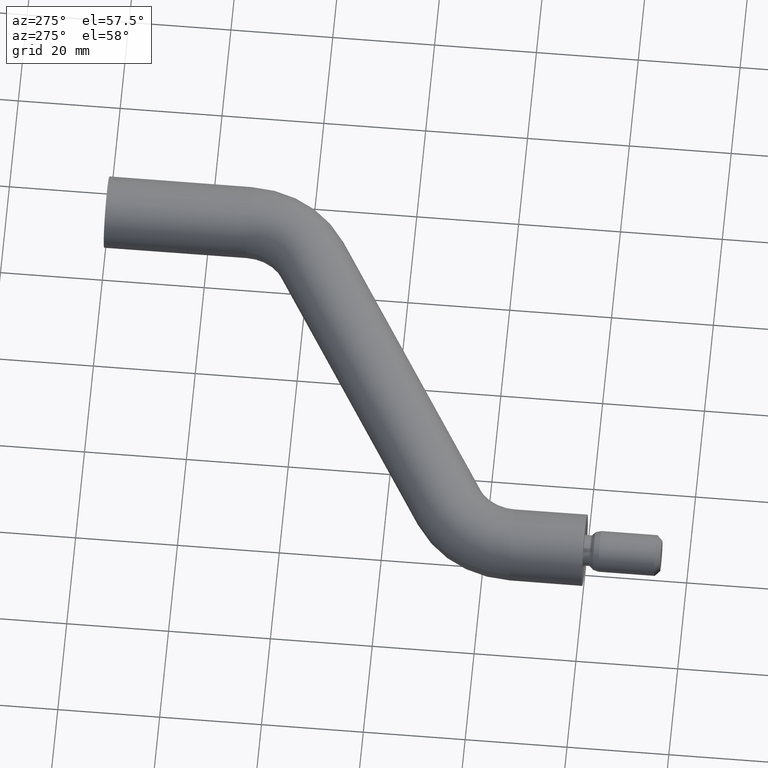
[diagram: clean part render]
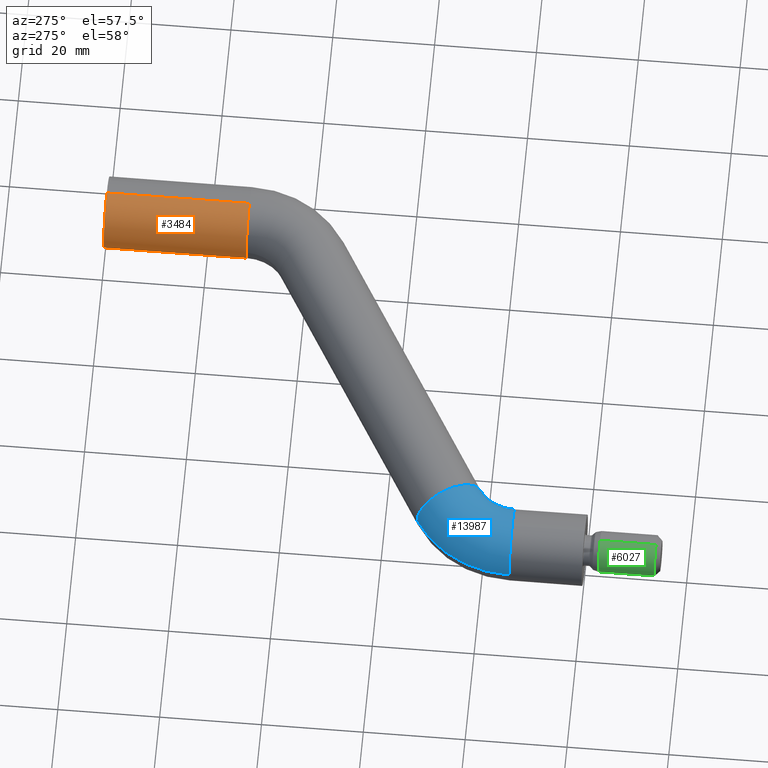
[diagram: same view with three faces highlighted in distinct colors, each labeled with its STEP entity id]
A machine part, auxiliary view with three faces highlighted in distinct colors.
Their STEP definitions:

[orange] entity #3484 — the highlighted cylindrical surface (edge-blend (fillet) strip) has radius 7 mm, axis along (0, 1, 0).
#5 = LINE ( 'NONE', #13776, #2896 ) ;
#145 = AXIS2_PLACEMENT_3D ( 'NONE', #3499, #10958, #8028 ) ;
#302 = DIRECTION ( 'NONE',  ( 0.0000000000000000000, 1.000000000000000000, 0.0000000000000000000 ) ) ;
#484 = DIRECTION ( 'NONE',  ( 0.0000000000000000000, 0.0000000000000000000, 1.000000000000000000 ) ) ;
#662 = CARTESIAN_POINT ( 'NONE',  ( 70.00000000000000000, 72.00000000000001400, 0.0000000000000000000 ) ) ;
#845 = CARTESIAN_POINT ( 'NONE',  ( 70.00000000000000000, 100.0000000000000000, -7.000000000000000000 ) ) ;
#1388 = VERTEX_POINT ( 'NONE', #845 ) ;
#1614 = CYLINDRICAL_SURFACE ( 'NONE', #145, 7.000000000000000000 ) ;
#1654 = ORIENTED_EDGE ( 'NONE', *, *, #5480, .T. ) ;
#1949 = VERTEX_POINT ( 'NONE', #7813 ) ;
#2266 = ORIENTED_EDGE ( 'NONE', *, *, #7674, .F. ) ;
#2325 = CARTESIAN_POINT ( 'NONE',  ( 70.00000000000000000, 72.00000000000001400, 0.0000000000000000000 ) ) ;
#2760 = VERTEX_POINT ( 'NONE', #12949 ) ;
#2896 = VECTOR ( 'NONE', #302, 1000.000000000000000 ) ;
#3065 = DIRECTION ( 'NONE',  ( -7.216449660063517500E-016, 1.000000000000000000, 0.0000000000000000000 ) ) ;
#3157 = ORIENTED_EDGE ( 'NONE', *, *, #14049, .F. ) ;
#3484 = ADVANCED_FACE ( 'NONE', ( #7209 ), #1614, .T. ) ;
#3499 = CARTESIAN_POINT ( 'NONE',  ( 70.00000000000000000, 72.00000000000001400, 0.0000000000000000000 ) ) ;
#3546 = DIRECTION ( 'NONE',  ( 0.0000000000000000000, 0.0000000000000000000, 1.000000000000000000 ) ) ;
#3625 = VERTEX_POINT ( 'NONE', #4930 ) ;
#3854 = ORIENTED_EDGE ( 'NONE', *, *, #14795, .T. ) ;
#4930 = CARTESIAN_POINT ( 'NONE',  ( 70.00000000000000000, 72.00000000000001400, -7.000000000000000000 ) ) ;
#5480 = EDGE_CURVE ( 'NONE', #2760, #1949, #5840, .T. ) ;
#5641 = DIRECTION ( 'NONE',  ( -7.216449660063517500E-016, 1.000000000000000000, 0.0000000000000000000 ) ) ;
#5840 = CIRCLE ( 'NONE', #13898, 7.000000000000000000 ) ;
#7209 = FACE_OUTER_BOUND ( 'NONE', #7919, .T. ) ;
#7512 = LINE ( 'NONE', #14399, #10009 ) ;
#7674 = EDGE_CURVE ( 'NONE', #1388, #11805, #9368, .T. ) ;
#7813 = CARTESIAN_POINT ( 'NONE',  ( 70.00000000000000000, 72.00000000000001400, 7.000000000000000000 ) ) ;
#7919 = EDGE_LOOP ( 'NONE', ( #3157, #12310, #1654, #3854, #2266 ) ) ;
#8028 = DIRECTION ( 'NONE',  ( 0.0000000000000000000, 0.0000000000000000000, 1.000000000000000000 ) ) ;
#8589 = EDGE_CURVE ( 'NONE', #3625, #2760, #9747, .T. ) ;
#9368 = CIRCLE ( 'NONE', #11930, 7.000000000000000000 ) ;
#9747 = CIRCLE ( 'NONE', #11232, 7.000000000000000000 ) ;
#10009 = VECTOR ( 'NONE', #11864, 1000.000000000000000 ) ;
#10187 = CARTESIAN_POINT ( 'NONE',  ( 70.00000000000000000, 100.0000000000000000, 0.0000000000000000000 ) ) ;
#10947 = DIRECTION ( 'NONE',  ( -7.216449660063517500E-016, 1.000000000000000000, 0.0000000000000000000 ) ) ;
#10958 = DIRECTION ( 'NONE',  ( 0.0000000000000000000, 1.000000000000000000, 0.0000000000000000000 ) ) ;
#11232 = AXIS2_PLACEMENT_3D ( 'NONE', #2325, #10947, #3546 ) ;
#11757 = CARTESIAN_POINT ( 'NONE',  ( 70.00000000000000000, 100.0000000000000000, 7.000000000000000000 ) ) ;
#11805 = VERTEX_POINT ( 'NONE', #11757 ) ;
#11864 = DIRECTION ( 'NONE',  ( 0.0000000000000000000, 1.000000000000000000, 0.0000000000000000000 ) ) ;
#11930 = AXIS2_PLACEMENT_3D ( 'NONE', #10187, #3065, #484 ) ;
#12310 = ORIENTED_EDGE ( 'NONE', *, *, #8589, .T. ) ;
#12949 = CARTESIAN_POINT ( 'NONE',  ( 63.00000000000000000, 72.00000000000001400, -8.572527594031465300E-016 ) ) ;
#13776 = CARTESIAN_POINT ( 'NONE',  ( 70.00000000000000000, 72.00000000000001400, -7.000000000000000000 ) ) ;
#13898 = AXIS2_PLACEMENT_3D ( 'NONE', #662, #5641, #14235 ) ;
#14049 = EDGE_CURVE ( 'NONE', #3625, #1388, #5, .T. ) ;
#14235 = DIRECTION ( 'NONE',  ( 0.0000000000000000000, 0.0000000000000000000, 1.000000000000000000 ) ) ;
#14399 = CARTESIAN_POINT ( 'NONE',  ( 70.00000000000000000, 72.00000000000001400, 7.000000000000000000 ) ) ;
#14795 = EDGE_CURVE ( 'NONE', #1949, #11805, #7512, .T. ) ;

[blue] entity #13987 — the highlighted toroidal blend (fillet) surface has major radius 15 mm and minor (blend) radius 7 mm.
#44 = ORIENTED_EDGE ( 'NONE', *, *, #12837, .T. ) ;
#496 = ORIENTED_EDGE ( 'NONE', *, *, #8055, .F. ) ;
#645 = CIRCLE ( 'NONE', #1927, 7.000000000000000000 ) ;
#676 = CARTESIAN_POINT ( 'NONE',  ( 8.572527594031473200E-016, 14.26497308103759900, 7.000000000000000000 ) ) ;
#753 = DIRECTION ( 'NONE',  ( 0.0000000000000000000, 0.0000000000000000000, 1.000000000000000000 ) ) ;
#810 = DIRECTION ( 'NONE',  ( 0.8660254037844398200, 0.4999999999999980000, 0.0000000000000000000 ) ) ;
#842 = DIRECTION ( 'NONE',  ( 0.0000000000000000000, 1.000000000000000000, 0.0000000000000000000 ) ) ;
#1441 = DIRECTION ( 'NONE',  ( -0.0000000000000000000, -0.0000000000000000000, -1.000000000000000000 ) ) ;
#1461 = CIRCLE ( 'NONE', #4740, 7.000000000000000000 ) ;
#1564 = AXIS2_PLACEMENT_3D ( 'NONE', #11309, #1441, #6523 ) ;
#1853 = DIRECTION ( 'NONE',  ( -0.0000000000000000000, -0.0000000000000000000, -1.000000000000000000 ) ) ;
#1927 = AXIS2_PLACEMENT_3D ( 'NONE', #6875, #8091, #8146 ) ;
#2385 = EDGE_CURVE ( 'NONE', #13337, #2406, #8158, .T. ) ;
#2406 = VERTEX_POINT ( 'NONE', #10739 ) ;
#2547 = AXIS2_PLACEMENT_3D ( 'NONE', #5595, #5702, #14188 ) ;
#2826 = ORIENTED_EDGE ( 'NONE', *, *, #2385, .F. ) ;
#3171 = VERTEX_POINT ( 'NONE', #12575 ) ;
#3327 = VERTEX_POINT ( 'NONE', #6970 ) ;
#4740 = AXIS2_PLACEMENT_3D ( 'NONE', #13052, #810, #753 ) ;
#5199 = VERTEX_POINT ( 'NONE', #676 ) ;
#5277 = AXIS2_PLACEMENT_3D ( 'NONE', #7057, #842, #15575 ) ;
#5595 = CARTESIAN_POINT ( 'NONE',  ( 15.00000000000000000, 14.26497308103759900, 8.572527594031473200E-016 ) ) ;
#5702 = DIRECTION ( 'NONE',  ( -0.0000000000000000000, -0.0000000000000000000, -1.000000000000000000 ) ) ;
#5889 = CIRCLE ( 'NONE', #2547, 8.000000000000000000 ) ;
#6523 = DIRECTION ( 'NONE',  ( -1.000000000000000000, 0.0000000000000000000, 0.0000000000000000000 ) ) ;
#6664 = DIRECTION ( 'NONE',  ( -1.000000000000000000, 0.0000000000000000000, 0.0000000000000000000 ) ) ;
#6724 = EDGE_CURVE ( 'NONE', #3171, #3327, #5889, .T. ) ;
#6875 = CARTESIAN_POINT ( 'NONE',  ( 0.0000000000000000000, 14.26497308103759900, 0.0000000000000000000 ) ) ;
#6970 = CARTESIAN_POINT ( 'NONE',  ( 11.00000000000001600, 21.19317631131311700, 8.572527594031473200E-016 ) ) ;
#7057 = CARTESIAN_POINT ( 'NONE',  ( 0.0000000000000000000, 14.26497308103759900, 0.0000000000000000000 ) ) ;
#7279 = EDGE_CURVE ( 'NONE', #5199, #3171, #645, .T. ) ;
#7780 = CARTESIAN_POINT ( 'NONE',  ( -6.999999999999999100, 14.26497308103759900, 0.0000000000000000000 ) ) ;
#8055 = EDGE_CURVE ( 'NONE', #2406, #3327, #1461, .T. ) ;
#8091 = DIRECTION ( 'NONE',  ( 0.0000000000000000000, 1.000000000000000000, 0.0000000000000000000 ) ) ;
#8146 = DIRECTION ( 'NONE',  ( 0.0000000000000000000, 0.0000000000000000000, 1.000000000000000000 ) ) ;
#8158 = CIRCLE ( 'NONE', #9101, 22.00000000000000000 ) ;
#8796 = ORIENTED_EDGE ( 'NONE', *, *, #7279, .T. ) ;
#9053 = FACE_OUTER_BOUND ( 'NONE', #11669, .T. ) ;
#9101 = AXIS2_PLACEMENT_3D ( 'NONE', #13965, #1853, #6664 ) ;
#9641 = TOROIDAL_SURFACE ( 'NONE', #1564, 15.00000000000000000, 7.000000000000000000 ) ;
#10739 = CARTESIAN_POINT ( 'NONE',  ( 4.000000000000043500, 33.31753196429527000, 0.0000000000000000000 ) ) ;
#11309 = CARTESIAN_POINT ( 'NONE',  ( 15.00000000000000000, 14.26497308103759900, 0.0000000000000000000 ) ) ;
#11669 = EDGE_LOOP ( 'NONE', ( #2826, #44, #8796, #12585, #496 ) ) ;
#12575 = CARTESIAN_POINT ( 'NONE',  ( 7.000000000000000900, 14.26497308103759900, 8.572527594031474200E-016 ) ) ;
#12585 = ORIENTED_EDGE ( 'NONE', *, *, #6724, .T. ) ;
#12837 = EDGE_CURVE ( 'NONE', #13337, #5199, #15654, .T. ) ;
#13052 = CARTESIAN_POINT ( 'NONE',  ( 7.500000000000030200, 27.25535413780419300, 0.0000000000000000000 ) ) ;
#13337 = VERTEX_POINT ( 'NONE', #7780 ) ;
#13965 = CARTESIAN_POINT ( 'NONE',  ( 15.00000000000000000, 14.26497308103759900, 0.0000000000000000000 ) ) ;
#13987 = ADVANCED_FACE ( 'NONE', ( #9053 ), #9641, .T. ) ;
#14188 = DIRECTION ( 'NONE',  ( -1.000000000000000000, 0.0000000000000000000, 0.0000000000000000000 ) ) ;
#15575 = DIRECTION ( 'NONE',  ( 0.0000000000000000000, 0.0000000000000000000, 1.000000000000000000 ) ) ;
#15654 = CIRCLE ( 'NONE', #5277, 7.000000000000000000 ) ;

[green] entity #6027 — the highlighted cylindrical surface (edge-blend (fillet) strip) has radius 4 mm, axis along (-0, -1, -0).
#39 = CARTESIAN_POINT ( 'NONE',  ( 0.0000000000000000000, -3.000000000000004400, 0.0000000000000000000 ) ) ;
#89 = CARTESIAN_POINT ( 'NONE',  ( 4.898587196589413800E-016, -13.99999999999999800, -4.000000000000000000 ) ) ;
#189 = EDGE_CURVE ( 'NONE', #6087, #6433, #1513, .T. ) ;
#202 = CARTESIAN_POINT ( 'NONE',  ( 0.0000000000000000000, 0.0000000000000000000, -4.000000000000001800 ) ) ;
#378 = ORIENTED_EDGE ( 'NONE', *, *, #7249, .F. ) ;
#736 = VECTOR ( 'NONE', #10069, 1000.000000000000000 ) ;
#1135 = LINE ( 'NONE', #202, #736 ) ;
#1513 = CIRCLE ( 'NONE', #3428, 4.000000000000000000 ) ;
#2399 = VECTOR ( 'NONE', #14181, 1000.000000000000000 ) ;
#2952 = AXIS2_PLACEMENT_3D ( 'NONE', #12343, #3549, #9752 ) ;
#3309 = AXIS2_PLACEMENT_3D ( 'NONE', #39, #13572, #15969 ) ;
#3428 = AXIS2_PLACEMENT_3D ( 'NONE', #7645, #6281, #11112 ) ;
#3549 = DIRECTION ( 'NONE',  ( -0.0000000000000000000, -1.000000000000000000, -0.0000000000000000000 ) ) ;
#4096 = ORIENTED_EDGE ( 'NONE', *, *, #13861, .T. ) ;
#4611 = CARTESIAN_POINT ( 'NONE',  ( 0.0000000000000000000, -3.000000000000004400, -4.000000000000002700 ) ) ;
#5407 = CARTESIAN_POINT ( 'NONE',  ( 4.898587196589416800E-016, -3.000000000000004400, 4.000000000000002700 ) ) ;
#5429 = ORIENTED_EDGE ( 'NONE', *, *, #15585, .T. ) ;
#6027 = ADVANCED_FACE ( 'NONE', ( #15649 ), #14864, .T. ) ;
#6087 = VERTEX_POINT ( 'NONE', #10998 ) ;
#6281 = DIRECTION ( 'NONE',  ( -0.0000000000000000000, -1.000000000000000000, -0.0000000000000000000 ) ) ;
#6433 = VERTEX_POINT ( 'NONE', #89 ) ;
#7249 = EDGE_CURVE ( 'NONE', #15782, #6087, #13385, .T. ) ;
#7645 = CARTESIAN_POINT ( 'NONE',  ( 0.0000000000000000000, -13.99999999999999800, 0.0000000000000000000 ) ) ;
#9752 = DIRECTION ( 'NONE',  ( 0.0000000000000000000, 0.0000000000000000000, -1.000000000000000000 ) ) ;
#10069 = DIRECTION ( 'NONE',  ( -0.0000000000000000000, -1.000000000000000000, -0.0000000000000000000 ) ) ;
#10895 = VERTEX_POINT ( 'NONE', #4611 ) ;
#10998 = CARTESIAN_POINT ( 'NONE',  ( 0.0000000000000000000, -13.99999999999999800, 4.000000000000000000 ) ) ;
#11112 = DIRECTION ( 'NONE',  ( 0.0000000000000000000, 0.0000000000000000000, -1.000000000000000000 ) ) ;
#11390 = CIRCLE ( 'NONE', #3309, 4.000000000000002700 ) ;
#12343 = CARTESIAN_POINT ( 'NONE',  ( 0.0000000000000000000, 0.0000000000000000000, 0.0000000000000000000 ) ) ;
#13385 = LINE ( 'NONE', #13969, #2399 ) ;
#13572 = DIRECTION ( 'NONE',  ( -0.0000000000000000000, -1.000000000000000000, -0.0000000000000000000 ) ) ;
#13861 = EDGE_CURVE ( 'NONE', #15782, #10895, #11390, .T. ) ;
#13969 = CARTESIAN_POINT ( 'NONE',  ( 4.898587196589415800E-016, 0.0000000000000000000, 4.000000000000001800 ) ) ;
#14181 = DIRECTION ( 'NONE',  ( -0.0000000000000000000, -1.000000000000000000, -0.0000000000000000000 ) ) ;
#14648 = ORIENTED_EDGE ( 'NONE', *, *, #189, .F. ) ;
#14864 = CYLINDRICAL_SURFACE ( 'NONE', #2952, 4.000000000000001800 ) ;
#15483 = EDGE_LOOP ( 'NONE', ( #378, #4096, #5429, #14648 ) ) ;
#15585 = EDGE_CURVE ( 'NONE', #10895, #6433, #1135, .T. ) ;
#15649 = FACE_OUTER_BOUND ( 'NONE', #15483, .T. ) ;
#15782 = VERTEX_POINT ( 'NONE', #5407 ) ;
#15969 = DIRECTION ( 'NONE',  ( 0.0000000000000000000, 0.0000000000000000000, -1.000000000000000000 ) ) ;